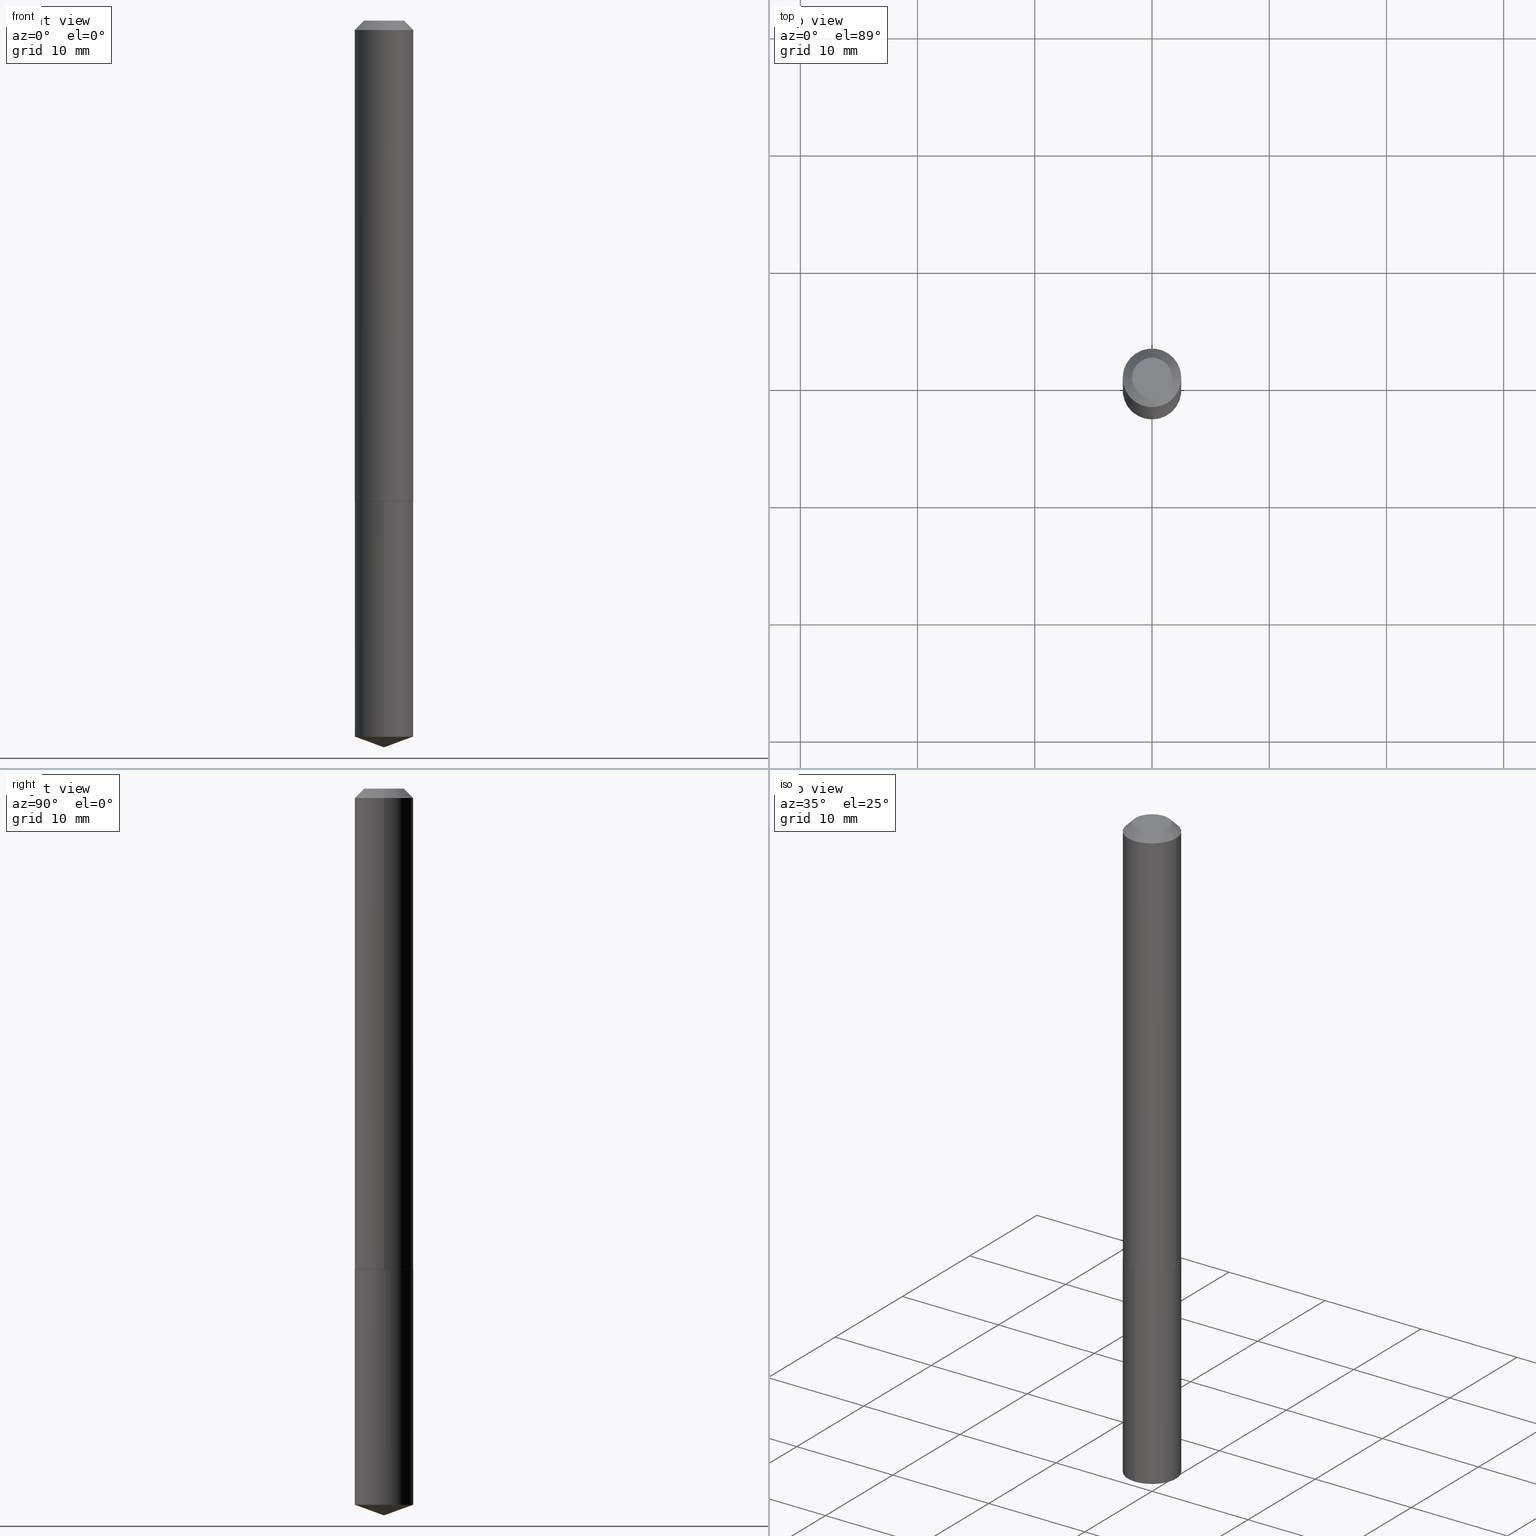
[diagram: canonical four-view strip — front | top / right | iso, engineering-drawing reading convention]
A machine part, canonical four-view strip (front | top / right | iso — engineering-drawing reading convention). The complete STEP part file that produces these views, byte-faithful:
ISO-10303-21;
HEADER;
FILE_DESCRIPTION (( 'STEP AP203' ),
    '1' );
FILE_NAME ('66017.STEP',
    '2024-04-23T12:02:58',
    ( '' ),
    ( '' ),
    'SwSTEP 2.0',
    'SolidWorks 2023',
    '' );
FILE_SCHEMA (( 'CONFIG_CONTROL_DESIGN' ));
ENDSEC;

DATA;
#1 = FACE_OUTER_BOUND ( 'NONE', #251, .T. ) ;
#2 = CARTESIAN_POINT ( 'NONE',  ( 0.09845000000000020401, -6.321676112109399581E-15, -1.613700000000000134 ) ) ;
#3 = DIRECTION ( 'NONE',  ( -6.982962677686265922E-15, -1.000000000000000000, 2.774858297271979165E-15 ) ) ;
#4 = DIRECTION ( 'NONE',  ( -2.445468806185136597E-29, 3.491481338843145583E-15, 1.000000000000000000 ) ) ;
#5 = CC_DESIGN_APPROVAL ( #203, ( #271 ) ) ;
#6 = ORIENTED_EDGE ( 'NONE', *, *, #126, .F. ) ;
#7 = ADVANCED_FACE ( 'NONE', ( #200 ), #317, .T. ) ;
#8 = EDGE_LOOP ( 'NONE', ( #17, #80 ) ) ;
#9 = CC_DESIGN_APPROVAL ( #154, ( #29 ) ) ;
#10 = ORIENTED_EDGE ( 'NONE', *, *, #339, .T. ) ;
#11 = CONICAL_SURFACE ( 'NONE', #252, 0.09845000000000020401, 0.7853981633973630139 ) ;
#12 = EDGE_LOOP ( 'NONE', ( #39, #261, #6, #13 ) ) ;
#13 = ORIENTED_EDGE ( 'NONE', *, *, #177, .F. ) ;
#14 = PERSON_AND_ORGANIZATION ( #312, #104 ) ;
#15 = DATE_AND_TIME ( #286, #325 ) ;
#16 = EDGE_CURVE ( 'NONE', #275, #147, #307, .T. ) ;
#17 = ORIENTED_EDGE ( 'NONE', *, *, #74, .T. ) ;
#18 = DIRECTION ( 'NONE',  ( -2.446042122429912463E-29, 3.490660317349492585E-15, 1.000000000000000000 ) ) ;
#19 = PERSON_AND_ORGANIZATION ( #312, #104 ) ;
#20 = VERTEX_POINT ( 'NONE', #326 ) ;
#21 = VECTOR ( 'NONE', #322, 39.37007874015748143 ) ;
#22 = DIRECTION ( 'NONE',  ( 0.7071067811865452413, -7.319954787623248157E-15, -0.7071067811865497932 ) ) ;
#23 = CARTESIAN_POINT ( 'NONE',  ( 0.000000000000000000, 0.000000000000000000, 0.000000000000000000 ) ) ;
#24 = COORDINATED_UNIVERSAL_TIME_OFFSET ( 5, 0, .BEHIND. ) ;
#25 = DIRECTION ( 'NONE',  ( -2.446042122429912463E-29, 3.490660317349492585E-15, 1.000000000000000000 ) ) ;
#26 = DIRECTION ( 'NONE',  ( -2.445468806185136597E-29, 3.491481338843145583E-15, 1.000000000000000000 ) ) ;
#27 = CARTESIAN_POINT ( 'NONE',  ( -9.033125219225071688E-28, 1.289058934876791926E-13, 36.92917874015748225 ) ) ;
#28 = CARTESIAN_POINT ( 'NONE',  ( -6.874726756181734128E-16, -0.09845000000000563023, -1.614199999999999635 ) ) ;
#29 = PRODUCT_DEFINITION_FORMATION_WITH_SPECIFIED_SOURCE ( 'ANY', '', #291, .NOT_KNOWN. ) ;
#30 = DIRECTION ( 'NONE',  ( -6.982962677686265922E-15, -1.000000000000000000, 2.774858297271979165E-15 ) ) ;
#31 = LINE ( 'NONE', #28, #279 ) ;
#32 = ADVANCED_FACE ( 'NONE', ( #329 ), #130, .F. ) ;
#33 = LINE ( 'NONE', #40, #118 ) ;
#34 = ORIENTED_EDGE ( 'NONE', *, *, #324, .T. ) ;
#35 = DIRECTION ( 'NONE',  ( -2.438088387897960049E-29, 3.491481338843145188E-15, 1.000000000000000000 ) ) ;
#36 = VERTEX_POINT ( 'NONE', #2 ) ;
#37 = CARTESIAN_POINT ( 'NONE',  ( -0.06719999999999999585, 5.238094878599405854E-16, 1.206277097156670637E-18 ) ) ;
#38 = CC_DESIGN_PERSON_AND_ORGANIZATION_ASSIGNMENT ( #14, #284, ( #79 ) ) ;
#39 = ORIENTED_EDGE ( 'NONE', *, *, #238, .T. ) ;
#40 = CARTESIAN_POINT ( 'NONE',  ( 5.970560446796191741E-29, -8.520352768618377167E-15, -2.440900000000000070 ) ) ;
#41 =( CONVERSION_BASED_UNIT ( 'INCH', #346 ) LENGTH_UNIT ( ) NAMED_UNIT ( #288 ) );
#42 = APPLICATION_CONTEXT ( 'configuration controlled 3d designs of mechanical parts and assemblies' ) ;
#43 = ORIENTED_EDGE ( 'NONE', *, *, #168, .T. ) ;
#44 = DIRECTION ( 'NONE',  ( 1.000000000000000000, -6.982962677686269866E-15, 0.000000000000000000 ) ) ;
#45 = DIRECTION ( 'NONE',  ( 0.7071067811864871766, -2.468850131081624789E-15, 0.7071067811866078578 ) ) ;
#46 = APPROVAL ( #319, 'UNSPECIFIED' ) ;
#47 = ORIENTED_EDGE ( 'NONE', *, *, #16, .T. ) ;
#48 = PERSON_AND_ORGANIZATION ( #312, #104 ) ;
#49 = CIRCLE ( 'NONE', #103, 0.09795000000000038398 ) ;
#50 =( GEOMETRIC_REPRESENTATION_CONTEXT ( 3 ) GLOBAL_UNCERTAINTY_ASSIGNED_CONTEXT ( ( #149 ) ) GLOBAL_UNIT_ASSIGNED_CONTEXT ( ( #41, #172, #320 ) ) REPRESENTATION_CONTEXT ( 'NONE', 'WORKASPACE' ) );
#51 = ADVANCED_FACE ( 'NONE', ( #59 ), #169, .T. ) ;
#52 = APPROVAL_ROLE ( '' ) ;
#53 = COORDINATED_UNIVERSAL_TIME_OFFSET ( 5, 0, .BEHIND. ) ;
#54 = CARTESIAN_POINT ( 'NONE',  ( 3.946253012540955150E-29, -5.634203436491184654E-15, -1.613700000000000134 ) ) ;
#55 = FACE_OUTER_BOUND ( 'NONE', #356, .T. ) ;
#56 = APPLICATION_PROTOCOL_DEFINITION ( 'international standard', 'config_control_design', 1994, #42 ) ;
#57 = VECTOR ( 'NONE', #232, 39.37007874015748143 ) ;
#58 = DIRECTION ( 'NONE',  ( 2.438088387897960049E-29, -3.491481338843145188E-15, -1.000000000000000000 ) ) ;
#59 = FACE_OUTER_BOUND ( 'NONE', #182, .T. ) ;
#60 = CYLINDRICAL_SURFACE ( 'NONE', #66, 0.09844999999999999585 ) ;
#61 = MANIFOLD_SOLID_BREP ( 'Body-Move/Copy2[1]', #166 ) ;
#62 = CARTESIAN_POINT ( 'NONE',  ( 3.946253012540955150E-29, -5.634203436491184654E-15, -1.613700000000000134 ) ) ;
#63 = FACE_OUTER_BOUND ( 'NONE', #221, .T. ) ;
#64 = FACE_OUTER_BOUND ( 'NONE', #155, .T. ) ;
#65 = DIRECTION ( 'NONE',  ( 2.445468806185136597E-29, -3.491481338843145583E-15, -1.000000000000000000 ) ) ;
#66 = AXIS2_PLACEMENT_3D ( 'NONE', #300, #264, #206 ) ;
#67 = CARTESIAN_POINT ( 'NONE',  ( 3.947475746944047390E-29, -5.635949177160606158E-15, -1.614199999999999857 ) ) ;
#68 = SHAPE_DEFINITION_REPRESENTATION ( #234, #95 ) ;
#69 = CC_DESIGN_PERSON_AND_ORGANIZATION_ASSIGNMENT ( #231, #379, ( #271 ) ) ;
#70 = DIRECTION ( 'NONE',  ( -2.445468806185136597E-29, 3.491481338843145583E-15, 1.000000000000000000 ) ) ;
#71 = ORIENTED_EDGE ( 'NONE', *, *, #373, .T. ) ;
#72 = VECTOR ( 'NONE', #45, 39.37007874015748143 ) ;
#73 = MANIFOLD_SOLID_BREP ( 'Body-Move/Copy2[2]', #161 ) ;
#74 = EDGE_CURVE ( 'NONE', #371, #85, #100, .T. ) ;
#75 = LINE ( 'NONE', #197, #21 ) ;
#76 = ORIENTED_EDGE ( 'NONE', *, *, #113, .F. ) ;
#77 = ORIENTED_EDGE ( 'NONE', *, *, #107, .F. ) ;
#78 = CC_DESIGN_PERSON_AND_ORGANIZATION_ASSIGNMENT ( #48, #112, ( #29 ) ) ;
#79 = SECURITY_CLASSIFICATION ( '', '', #173 ) ;
#80 = ORIENTED_EDGE ( 'NONE', *, *, #141, .T. ) ;
#81 = DATE_AND_TIME ( #295, #189 ) ;
#82 = VERTEX_POINT ( 'NONE', #183 ) ;
#83 = DIRECTION ( 'NONE',  ( 1.000000000000000000, 0.000000000000000000, 0.000000000000000000 ) ) ;
#84 = EDGE_CURVE ( 'NONE', #229, #105, #174, .T. ) ;
#85 = VERTEX_POINT ( 'NONE', #248 ) ;
#86 = PERSON_AND_ORGANIZATION ( #312, #104 ) ;
#87 = AXIS2_PLACEMENT_3D ( 'NONE', #245, #273, #299 ) ;
#88 = AXIS2_PLACEMENT_3D ( 'NONE', #212, #387, #156 ) ;
#89 = ORIENTED_EDGE ( 'NONE', *, *, #113, .T. ) ;
#90 = DIRECTION ( 'NONE',  ( -2.445468806185136597E-29, 3.491481338843145583E-15, 1.000000000000000000 ) ) ;
#91 = CARTESIAN_POINT ( 'NONE',  ( -2.949913012720686933E-47, 4.211693974208519599E-33, 1.206277097160142896E-18 ) ) ;
#92 = DIRECTION ( 'NONE',  ( 1.000000000000000000, -6.982962677686271444E-15, 0.000000000000000000 ) ) ;
#93 = AXIS2_PLACEMENT_3D ( 'NONE', #54, #184, #236 ) ;
#94 = DIRECTION ( 'NONE',  ( -2.445468806185136597E-29, 3.491481338843145583E-15, 1.000000000000000000 ) ) ;
#95 = ADVANCED_BREP_SHAPE_REPRESENTATION ( '66017', ( #61, #73, #314 ), #50 ) ;
#96 = CARTESIAN_POINT ( 'NONE',  ( 3.947475746944047390E-29, -5.635949177160606158E-15, -1.614199999999999857 ) ) ;
#97 = DIRECTION ( 'NONE',  ( -2.446042122429912463E-29, 3.490660317349492979E-15, 1.000000000000000000 ) ) ;
#98 = CARTESIAN_POINT ( 'NONE',  ( 5.881970061236980802E-29, -8.396597685671335252E-15, -2.405067130436492562 ) ) ;
#99 = EDGE_CURVE ( 'NONE', #371, #348, #337, .T. ) ;
#100 = CIRCLE ( 'NONE', #250, 0.06719999999999999585 ) ;
#101 = VECTOR ( 'NONE', #301, 39.37007874015748854 ) ;
#102 = ORIENTED_EDGE ( 'NONE', *, *, #193, .F. ) ;
#103 = AXIS2_PLACEMENT_3D ( 'NONE', #124, #240, #364 ) ;
#104 = ORGANIZATION ( 'UNSPECIFIED', 'UNSPECIFIED', '' ) ;
#105 = VERTEX_POINT ( 'NONE', #388 ) ;
#106 = DIRECTION ( 'NONE',  ( -2.446042122429912463E-29, 3.490660317349492585E-15, 1.000000000000000000 ) ) ;
#107 = EDGE_CURVE ( 'NONE', #147, #275, #49, .T. ) ;
#108 = CARTESIAN_POINT ( 'NONE',  ( 3.947475746944047390E-29, -5.635949177160606158E-15, -1.614199999999999857 ) ) ;
#109 = ORIENTED_EDGE ( 'NONE', *, *, #99, .F. ) ;
#110 = DIRECTION ( 'NONE',  ( 0.000000000000000000, 0.000000000000000000, 1.000000000000000000 ) ) ;
#111 = AXIS2_PLACEMENT_3D ( 'NONE', #338, #35, #195 ) ;
#112 = PERSON_AND_ORGANIZATION_ROLE ( 'creator' ) ;
#113 = EDGE_CURVE ( 'NONE', #82, #116, #313, .T. ) ;
#114 = CARTESIAN_POINT ( 'NONE',  ( 7.642090019328604414E-31, -1.091087918388490513E-16, -0.03125000000000021511 ) ) ;
#115 = DATE_AND_TIME ( #259, #296 ) ;
#116 = VERTEX_POINT ( 'NONE', #215 ) ;
#117 = CIRCLE ( 'NONE', #334, 0.09845000000000000973 ) ;
#118 = VECTOR ( 'NONE', #196, 39.37007874015749564 ) ;
#119 = CARTESIAN_POINT ( 'NONE',  ( -0.09845000000000010687, 6.995293233558193923E-16, -4.842691596355960348E-30 ) ) ;
#120 = APPROVAL_ROLE ( '' ) ;
#121 = CC_DESIGN_DATE_AND_TIME_ASSIGNMENT ( #115, #227, ( #79 ) ) ;
#122 = LINE ( 'NONE', #366, #194 ) ;
#123 = DESIGN_CONTEXT ( 'detailed design', #42, 'design' ) ;
#124 = CARTESIAN_POINT ( 'NONE',  ( 3.947475746944047390E-29, -5.635949177160606158E-15, -1.614199999999999857 ) ) ;
#125 = LINE ( 'NONE', #292, #170 ) ;
#126 = EDGE_CURVE ( 'NONE', #20, #348, #293, .T. ) ;
#127 = CARTESIAN_POINT ( 'NONE',  ( -2.949913012720686933E-47, 4.211693974208519599E-33, 1.206277097160142896E-18 ) ) ;
#128 = CARTESIAN_POINT ( 'NONE',  ( -0.09845000000000020401, -4.934674113135364966E-15, -1.613700000000000134 ) ) ;
#129 = DIRECTION ( 'NONE',  ( -6.982962677686265922E-15, -1.000000000000000000, 2.774858297271979165E-15 ) ) ;
#130 = PLANE ( 'NONE',  #376 ) ;
#131 = DIRECTION ( 'NONE',  ( 1.000000000000000000, -6.982962677686266711E-15, 0.000000000000000000 ) ) ;
#132 = APPROVAL_PERSON_ORGANIZATION ( #352, #46, #52 ) ;
#133 = ORIENTED_EDGE ( 'NONE', *, *, #216, .F. ) ;
#134 = FACE_OUTER_BOUND ( 'NONE', #198, .T. ) ;
#135 = CC_DESIGN_DATE_AND_TIME_ASSIGNMENT ( #382, #316, ( #271 ) ) ;
#136 = EDGE_LOOP ( 'NONE', ( #133, #145, #258, #43 ) ) ;
#137 = CARTESIAN_POINT ( 'NONE',  ( 5.970544216639173318E-29, -8.520352768618377167E-15, -2.440900000000000070 ) ) ;
#138 = AXIS2_PLACEMENT_3D ( 'NONE', #365, #26, #131 ) ;
#139 = AXIS2_PLACEMENT_3D ( 'NONE', #108, #106, #129 ) ;
#140 = CARTESIAN_POINT ( 'NONE',  ( 7.642090019328604414E-31, -1.091087918388490513E-16, -0.03125000000000021511 ) ) ;
#141 = EDGE_CURVE ( 'NONE', #85, #371, #354, .T. ) ;
#142 = ORIENTED_EDGE ( 'NONE', *, *, #211, .F. ) ;
#143 = ORIENTED_EDGE ( 'NONE', *, *, #16, .F. ) ;
#144 = CONICAL_SURFACE ( 'NONE', #274, 108.1684023407337918, 1.221730476396032605 ) ;
#145 = ORIENTED_EDGE ( 'NONE', *, *, #74, .F. ) ;
#146 = COORDINATED_UNIVERSAL_TIME_OFFSET ( 5, 0, .BEHIND. ) ;
#147 = VERTEX_POINT ( 'NONE', #268 ) ;
#148 = APPROVAL_DATE_TIME ( #386, #203 ) ;
#149 = UNCERTAINTY_MEASURE_WITH_UNIT (LENGTH_MEASURE( 1.000000000000000082E-05 ), #41, 'distance_accuracy_value', 'NONE');
#150 = ORIENTED_EDGE ( 'NONE', *, *, #84, .T. ) ;
#151 = DIRECTION ( 'NONE',  ( -6.982962677686268288E-15, -1.000000000000000000, 3.475157955500709564E-15 ) ) ;
#152 = AXIS2_PLACEMENT_3D ( 'NONE', #98, #305, #30 ) ;
#153 = AXIS2_PLACEMENT_3D ( 'NONE', #67, #162, #3 ) ;
#154 = APPROVAL ( #179, 'UNSPECIFIED' ) ;
#155 = EDGE_LOOP ( 'NONE', ( #283, #71, #76 ) ) ;
#156 = DIRECTION ( 'NONE',  ( 1.000000000000000000, -6.982962677686267499E-15, 4.876176775795935793E-29 ) ) ;
#157 = DIRECTION ( 'NONE',  ( 2.446042122429911622E-29, -3.490660317349492979E-15, -1.000000000000000000 ) ) ;
#158 = DIRECTION ( 'NONE',  ( -6.982962677686265922E-15, -1.000000000000000000, 2.774858297271979165E-15 ) ) ;
#159 = EDGE_CURVE ( 'NONE', #116, #82, #278, .T. ) ;
#160 = DIRECTION ( 'NONE',  ( -2.445468806185136597E-29, 3.491481338843145583E-15, 1.000000000000000000 ) ) ;
#161 = CLOSED_SHELL ( 'NONE', ( #246, #228, #358, #370, #51, #280, #7, #297 ) ) ;
#162 = DIRECTION ( 'NONE',  ( -2.446042122429912463E-29, 3.490660317349492585E-15, 1.000000000000000000 ) ) ;
#163 = DIRECTION ( 'NONE',  ( 1.000000000000000000, -6.982962677686269866E-15, 0.000000000000000000 ) ) ;
#164 = LINE ( 'NONE', #277, #72 ) ;
#165 = PRODUCT_RELATED_PRODUCT_CATEGORY ( 'detail', '', ( #291 ) ) ;
#166 = CLOSED_SHELL ( 'NONE', ( #344, #311, #254, #225, #32 ) ) ;
#167 = ORIENTED_EDGE ( 'NONE', *, *, #216, .T. ) ;
#168 = EDGE_CURVE ( 'NONE', #348, #20, #117, .T. ) ;
#169 = CONICAL_SURFACE ( 'NONE', #219, 0.09845000000000020401, 0.7853981633973630139 ) ;
#170 = VECTOR ( 'NONE', #22, 39.37007874015748143 ) ;
#171 = ORIENTED_EDGE ( 'NONE', *, *, #302, .T. ) ;
#172 =( NAMED_UNIT ( * ) PLANE_ANGLE_UNIT ( ) SI_UNIT ( $, .RADIAN. ) );
#173 = SECURITY_CLASSIFICATION_LEVEL ( 'unclassified' ) ;
#174 = CIRCLE ( 'NONE', #247, 0.09844999999999999585 ) ;
#175 = COORDINATED_UNIVERSAL_TIME_OFFSET ( 5, 0, .BEHIND. ) ;
#176 = CARTESIAN_POINT ( 'NONE',  ( 0.000000000000000000, 0.000000000000000000, 0.000000000000000000 ) ) ;
#177 = EDGE_CURVE ( 'NONE', #36, #20, #75, .T. ) ;
#178 = CARTESIAN_POINT ( 'NONE',  ( 3.946253012540955150E-29, -5.634203436491184654E-15, -1.613700000000000134 ) ) ;
#179 = APPROVAL_STATUS ( 'not_yet_approved' ) ;
#180 = DIRECTION ( 'NONE',  ( 1.000000000000000000, -6.982962677686266711E-15, 4.876163892769828153E-29 ) ) ;
#181 = FACE_OUTER_BOUND ( 'NONE', #12, .T. ) ;
#182 = EDGE_LOOP ( 'NONE', ( #306, #47, #309, #142 ) ) ;
#183 = CARTESIAN_POINT ( 'NONE',  ( -6.874726756181539871E-16, -0.09845000000000836415, -2.405067130436492562 ) ) ;
#184 = DIRECTION ( 'NONE',  ( -2.445468806185136597E-29, 3.491481338843145583E-15, 1.000000000000000000 ) ) ;
#185 = DIRECTION ( 'NONE',  ( -2.445468806185136597E-29, 3.491481338843145583E-15, 1.000000000000000000 ) ) ;
#186 = CARTESIAN_POINT ( 'NONE',  ( 6.995293233558774722E-16, 0.09844999999999436147, -1.614200000000000301 ) ) ;
#187 = DIRECTION ( 'NONE',  ( -2.446042122429912463E-29, 3.490660317349492585E-15, 1.000000000000000000 ) ) ;
#188 = CARTESIAN_POINT ( 'NONE',  ( -0.09845000000000000973, 5.783638837793639525E-16, -0.03125000000000021511 ) ) ;
#189 = LOCAL_TIME ( 8, 2, 58.00000000000000000, #233 ) ;
#190 = DIRECTION ( 'NONE',  ( -1.000000000000000000, 6.982962677686266711E-15, 0.000000000000000000 ) ) ;
#191 = CARTESIAN_POINT ( 'NONE',  ( 3.947475746944047390E-29, -5.635949177160606158E-15, -1.614199999999999857 ) ) ;
#192 = APPROVAL_DATE_TIME ( #15, #46 ) ;
#193 = EDGE_CURVE ( 'NONE', #116, #229, #267, .T. ) ;
#194 = VECTOR ( 'NONE', #272, 39.37007874015748143 ) ;
#195 = DIRECTION ( 'NONE',  ( 1.000000000000000000, -6.982962677686265922E-15, 4.876176775795935793E-29 ) ) ;
#196 = DIRECTION ( 'NONE',  ( 6.676917655467970496E-15, 0.9396926207859102043, 0.3420201433256636059 ) ) ;
#197 = CARTESIAN_POINT ( 'NONE',  ( 0.09845000000000010687, -6.874726756182137434E-16, 4.800596035771104119E-30 ) ) ;
#198 = EDGE_LOOP ( 'NONE', ( #77, #143 ) ) ;
#199 = LOCAL_TIME ( 8, 2, 58.00000000000000000, #24 ) ;
#200 = FACE_OUTER_BOUND ( 'NONE', #136, .T. ) ;
#201 = APPROVAL_DATE_TIME ( #81, #154 ) ;
#202 = PERSON_AND_ORGANIZATION_ROLE ( 'design_owner' ) ;
#203 = APPROVAL ( #359, 'UNSPECIFIED' ) ;
#204 = PERSON_AND_ORGANIZATION ( #312, #104 ) ;
#205 = ORIENTED_EDGE ( 'NONE', *, *, #373, .F. ) ;
#206 = DIRECTION ( 'NONE',  ( -6.982962677686265922E-15, -1.000000000000000000, 2.774858297271979165E-15 ) ) ;
#207 = DIRECTION ( 'NONE',  ( -1.000000000000000000, 6.982962677686265922E-15, -4.876176775795935793E-29 ) ) ;
#208 = CC_DESIGN_SECURITY_CLASSIFICATION ( #79, ( #29 ) ) ;
#209 = FACE_OUTER_BOUND ( 'NONE', #342, .T. ) ;
#210 = CARTESIAN_POINT ( 'NONE',  ( -9.033125219225071688E-28, 1.289058934876791926E-13, 36.92917874015748225 ) ) ;
#211 = EDGE_CURVE ( 'NONE', #287, #36, #255, .T. ) ;
#212 = CARTESIAN_POINT ( 'NONE',  ( 0.000000000000000000, 0.000000000000000000, 0.000000000000000000 ) ) ;
#213 = CYLINDRICAL_SURFACE ( 'NONE', #153, 0.09844999999999999585 ) ;
#214 = VECTOR ( 'NONE', #266, 39.37007874015748143 ) ;
#215 = CARTESIAN_POINT ( 'NONE',  ( 6.995293233558771764E-16, 0.09844999999999157203, -2.405067130436493006 ) ) ;
#216 = EDGE_CURVE ( 'NONE', #85, #20, #125, .T. ) ;
#217 = EDGE_LOOP ( 'NONE', ( #102, #257, #10, #340 ) ) ;
#218 =( LENGTH_UNIT ( ) NAMED_UNIT ( * ) SI_UNIT ( $, .METRE. ) );
#219 = AXIS2_PLACEMENT_3D ( 'NONE', #62, #4, #163 ) ;
#220 = ORIENTED_EDGE ( 'NONE', *, *, #168, .F. ) ;
#221 = EDGE_LOOP ( 'NONE', ( #205, #34, #315 ) ) ;
#222 = AXIS2_PLACEMENT_3D ( 'NONE', #96, #185, #92 ) ;
#223 = VECTOR ( 'NONE', #97, 39.37007874015748143 ) ;
#224 = MECHANICAL_CONTEXT ( 'NONE', #378, 'mechanical' ) ;
#225 = ADVANCED_FACE ( 'NONE', ( #235 ), #60, .T. ) ;
#226 = PERSON_AND_ORGANIZATION ( #312, #104 ) ;
#227 = DATE_TIME_ROLE ( 'classification_date' ) ;
#228 = ADVANCED_FACE ( 'NONE', ( #181 ), #241, .T. ) ;
#229 = VERTEX_POINT ( 'NONE', #186 ) ;
#230 = AXIS2_PLACEMENT_3D ( 'NONE', #91, #160, #180 ) ;
#231 = PERSON_AND_ORGANIZATION ( #312, #104 ) ;
#232 = DIRECTION ( 'NONE',  ( -2.445468806185136877E-29, 3.491481338843145188E-15, 1.000000000000000000 ) ) ;
#233 = COORDINATED_UNIVERSAL_TIME_OFFSET ( 5, 0, .BEHIND. ) ;
#234 = PRODUCT_DEFINITION_SHAPE ( 'NONE', 'NONE',  #271 ) ;
#235 = FACE_OUTER_BOUND ( 'NONE', #217, .T. ) ;
#236 = DIRECTION ( 'NONE',  ( 1.000000000000000000, -6.982962677686269866E-15, 0.000000000000000000 ) ) ;
#237 = DIRECTION ( 'NONE',  ( -6.982962677686268288E-15, -1.000000000000000000, 3.475157955500709564E-15 ) ) ;
#238 = EDGE_CURVE ( 'NONE', #36, #287, #308, .T. ) ;
#239 = CONICAL_SURFACE ( 'NONE', #341, 108.1684023407337918, 1.221730476396032605 ) ;
#240 = DIRECTION ( 'NONE',  ( -2.445468806185136597E-29, 3.491481338843145583E-15, 1.000000000000000000 ) ) ;
#241 = CYLINDRICAL_SURFACE ( 'NONE', #88, 0.09845000000000010687 ) ;
#242 = CYLINDRICAL_SURFACE ( 'NONE', #304, 0.09845000000000010687 ) ;
#243 = DIRECTION ( 'NONE',  ( -2.445468806185136597E-29, 3.491481338843145583E-15, 1.000000000000000000 ) ) ;
#244 = DIRECTION ( 'NONE',  ( 1.000000000000000000, -6.982962677686267499E-15, 4.876176775795935793E-29 ) ) ;
#245 = CARTESIAN_POINT ( 'NONE',  ( 5.881970061236980802E-29, -8.396597685671335252E-15, -2.405067130436492562 ) ) ;
#246 = ADVANCED_FACE ( 'NONE', ( #209 ), #362, .T. ) ;
#247 = AXIS2_PLACEMENT_3D ( 'NONE', #191, #25, #158 ) ;
#248 = CARTESIAN_POINT ( 'NONE',  ( 0.06719999999999999585, -6.227751425848516752E-16, 1.206277097163960667E-18 ) ) ;
#249 = AXIS2_PLACEMENT_3D ( 'NONE', #333, #58, #207 ) ;
#250 = AXIS2_PLACEMENT_3D ( 'NONE', #127, #243, #367 ) ;
#251 = EDGE_LOOP ( 'NONE', ( #89, #253, #383, #345 ) ) ;
#252 = AXIS2_PLACEMENT_3D ( 'NONE', #178, #294, #44 ) ;
#253 = ORIENTED_EDGE ( 'NONE', *, *, #193, .T. ) ;
#254 = ADVANCED_FACE ( 'NONE', ( #63 ), #239, .T. ) ;
#255 = CIRCLE ( 'NONE', #93, 0.09845000000000020401 ) ;
#256 = APPROVAL_ROLE ( '' ) ;
#257 = ORIENTED_EDGE ( 'NONE', *, *, #159, .T. ) ;
#258 = ORIENTED_EDGE ( 'NONE', *, *, #99, .T. ) ;
#259 = CALENDAR_DATE ( 2024, 23, 4 ) ;
#260 = EDGE_CURVE ( 'NONE', #287, #348, #262, .T. ) ;
#261 = ORIENTED_EDGE ( 'NONE', *, *, #260, .T. ) ;
#262 = LINE ( 'NONE', #119, #57 ) ;
#263 = CALENDAR_DATE ( 2024, 23, 4 ) ;
#264 = DIRECTION ( 'NONE',  ( -2.446042122429912463E-29, 3.490660317349492585E-15, 1.000000000000000000 ) ) ;
#265 = CC_DESIGN_PERSON_AND_ORGANIZATION_ASSIGNMENT ( #226, #350, ( #29 ) ) ;
#266 = DIRECTION ( 'NONE',  ( -0.7071067811865452413, 2.468850131082233000E-15, -0.7071067811865497932 ) ) ;
#267 = LINE ( 'NONE', #269, #223 ) ;
#268 = CARTESIAN_POINT ( 'NONE',  ( 0.09795000000000038398, -6.319930371439978866E-15, -1.614199999999999857 ) ) ;
#269 = CARTESIAN_POINT ( 'NONE',  ( 6.995293233558578493E-16, 0.09844999999999436147, -1.614200000000000301 ) ) ;
#270 = DIRECTION ( 'NONE',  ( -2.446042122429912463E-29, 3.490660317349492979E-15, 1.000000000000000000 ) ) ;
#271 = PRODUCT_DEFINITION ( 'UNKNOWN', '', #29, #123 ) ;
#272 = DIRECTION ( 'NONE',  ( -0.7071067811864871766, 7.493145998870136435E-15, 0.7071067811866078578 ) ) ;
#273 = DIRECTION ( 'NONE',  ( -2.446042122429912463E-29, 3.490660317349492585E-15, 1.000000000000000000 ) ) ;
#274 = AXIS2_PLACEMENT_3D ( 'NONE', #210, #187, #237 ) ;
#275 = VERTEX_POINT ( 'NONE', #357 ) ;
#276 = ORIENTED_EDGE ( 'NONE', *, *, #177, .T. ) ;
#277 = CARTESIAN_POINT ( 'NONE',  ( 0.09845000000000020401, -6.321676112109399581E-15, -1.613700000000000134 ) ) ;
#278 = CIRCLE ( 'NONE', #152, 0.09844999999999999585 ) ;
#279 = VECTOR ( 'NONE', #270, 39.37007874015748143 ) ;
#280 = ADVANCED_FACE ( 'NONE', ( #335 ), #242, .T. ) ;
#281 = DIRECTION ( 'NONE',  ( -1.000000000000000000, 6.982962677686266711E-15, 0.000000000000000000 ) ) ;
#282 = APPLICATION_PROTOCOL_DEFINITION ( 'international standard', 'config_control_design', 1994, #378 ) ;
#283 = ORIENTED_EDGE ( 'NONE', *, *, #324, .F. ) ;
#284 = PERSON_AND_ORGANIZATION_ROLE ( 'classification_officer' ) ;
#285 = ORIENTED_EDGE ( 'NONE', *, *, #384, .F. ) ;
#286 = CALENDAR_DATE ( 2024, 23, 4 ) ;
#287 = VERTEX_POINT ( 'NONE', #128 ) ;
#288 = DIMENSIONAL_EXPONENTS ( 1.000000000000000000, 0.000000000000000000, 0.000000000000000000, 0.000000000000000000, 0.000000000000000000, 0.000000000000000000, 0.000000000000000000 ) ;
#289 = CALENDAR_DATE ( 2024, 23, 4 ) ;
#290 = EDGE_LOOP ( 'NONE', ( #381, #150 ) ) ;
#291 = PRODUCT ( '66017', '66017', '', ( #224 ) ) ;
#292 = CARTESIAN_POINT ( 'NONE',  ( 0.09845000000000000973, -7.845248197194565048E-16, -0.03125000000000021511 ) ) ;
#293 = CIRCLE ( 'NONE', #138, 0.09845000000000000973 ) ;
#294 = DIRECTION ( 'NONE',  ( -2.445468806185136597E-29, 3.491481338843145583E-15, 1.000000000000000000 ) ) ;
#295 = CALENDAR_DATE ( 2024, 23, 4 ) ;
#296 = LOCAL_TIME ( 8, 2, 58.00000000000000000, #146 ) ;
#297 = ADVANCED_FACE ( 'NONE', ( #331 ), #368, .F. ) ;
#298 = CARTESIAN_POINT ( 'NONE',  ( 3.947475746944047390E-29, -5.635949177160606158E-15, -1.614199999999999857 ) ) ;
#299 = DIRECTION ( 'NONE',  ( -6.982962677686265922E-15, -1.000000000000000000, 2.774858297271979165E-15 ) ) ;
#300 = CARTESIAN_POINT ( 'NONE',  ( 3.947475746944047390E-29, -5.635949177160606158E-15, -1.614199999999999857 ) ) ;
#301 = DIRECTION ( 'NONE',  ( -6.561838499445205585E-15, -0.9396926207859077618, 0.3420201433256702117 ) ) ;
#302 = EDGE_CURVE ( 'NONE', #275, #287, #122, .T. ) ;
#303 = AXIS2_PLACEMENT_3D ( 'NONE', #114, #351, #281 ) ;
#304 = AXIS2_PLACEMENT_3D ( 'NONE', #23, #94, #244 ) ;
#305 = DIRECTION ( 'NONE',  ( -2.446042122429912463E-29, 3.490660317349492585E-15, 1.000000000000000000 ) ) ;
#306 = ORIENTED_EDGE ( 'NONE', *, *, #302, .F. ) ;
#307 = CIRCLE ( 'NONE', #222, 0.09795000000000038398 ) ;
#308 = CIRCLE ( 'NONE', #347, 0.09845000000000020401 ) ;
#309 = ORIENTED_EDGE ( 'NONE', *, *, #384, .T. ) ;
#310 = ORIENTED_EDGE ( 'NONE', *, *, #141, .F. ) ;
#311 = ADVANCED_FACE ( 'NONE', ( #64 ), #144, .T. ) ;
#312 = PERSON ( 'UNSPECIFIED', 'UNSPECIFIED', 'UNSPECIFIED', ('UNSPECIFIED'), ('UNSPECIFIED'), ('UNSPECIFIED') ) ;
#313 = CIRCLE ( 'NONE', #87, 0.09844999999999999585 ) ;
#314 = AXIS2_PLACEMENT_3D ( 'NONE', #176, #110, #83 ) ;
#315 = ORIENTED_EDGE ( 'NONE', *, *, #159, .F. ) ;
#316 = DATE_TIME_ROLE ( 'creation_date' ) ;
#317 = CONICAL_SURFACE ( 'NONE', #303, 0.09845000000000000973, 0.7853981633974450594 ) ;
#318 = LOCAL_TIME ( 8, 2, 58.00000000000000000, #53 ) ;
#319 = APPROVAL_STATUS ( 'not_yet_approved' ) ;
#320 =( NAMED_UNIT ( * ) SI_UNIT ( $, .STERADIAN. ) SOLID_ANGLE_UNIT ( ) );
#321 = EDGE_LOOP ( 'NONE', ( #360, #349, #276, #220 ) ) ;
#322 = DIRECTION ( 'NONE',  ( -2.445468806185136877E-29, 3.491481338843145188E-15, 1.000000000000000000 ) ) ;
#323 = CARTESIAN_POINT ( 'NONE',  ( -0.09845000000000000973, -2.172126790809196006E-15, -0.03125000000000021511 ) ) ;
#324 = EDGE_CURVE ( 'NONE', #375, #82, #361, .T. ) ;
#325 = LOCAL_TIME ( 8, 2, 58.00000000000000000, #175 ) ;
#326 = CARTESIAN_POINT ( 'NONE',  ( 0.09845000000000000973, -7.965814674570621538E-16, -0.03125000000000021511 ) ) ;
#327 = CARTESIAN_POINT ( 'NONE',  ( 7.642090019328604414E-31, -1.091087918388490513E-16, -0.03125000000000021511 ) ) ;
#328 = CARTESIAN_POINT ( 'NONE',  ( 5.968693322474538198E-29, -8.523003354408487674E-15, -2.440900000000000070 ) ) ;
#329 = FACE_OUTER_BOUND ( 'NONE', #290, .T. ) ;
#330 = CARTESIAN_POINT ( 'NONE',  ( 3.946253012540955150E-29, -5.634203436491184654E-15, -1.613700000000000134 ) ) ;
#331 = FACE_OUTER_BOUND ( 'NONE', #8, .T. ) ;
#332 = DIRECTION ( 'NONE',  ( 1.000000000000000000, -6.982962677686269866E-15, 0.000000000000000000 ) ) ;
#333 = CARTESIAN_POINT ( 'NONE',  ( -1.474956506360343467E-47, 2.105846987104259800E-33, 6.031385485800714479E-19 ) ) ;
#334 = AXIS2_PLACEMENT_3D ( 'NONE', #140, #70, #353 ) ;
#335 = FACE_OUTER_BOUND ( 'NONE', #321, .T. ) ;
#336 = AXIS2_PLACEMENT_3D ( 'NONE', #327, #65, #190 ) ;
#337 = LINE ( 'NONE', #188, #214 ) ;
#338 = CARTESIAN_POINT ( 'NONE',  ( 3.947475746944047390E-29, -5.635949177160606158E-15, -1.614199999999999857 ) ) ;
#339 = EDGE_CURVE ( 'NONE', #82, #105, #31, .T. ) ;
#340 = ORIENTED_EDGE ( 'NONE', *, *, #84, .F. ) ;
#341 = AXIS2_PLACEMENT_3D ( 'NONE', #27, #18, #151 ) ;
#342 = EDGE_LOOP ( 'NONE', ( #310, #167, #374, #109 ) ) ;
#343 = PLANE ( 'NONE',  #111 ) ;
#344 = ADVANCED_FACE ( 'NONE', ( #1 ), #213, .T. ) ;
#345 = ORIENTED_EDGE ( 'NONE', *, *, #339, .F. ) ;
#346 = LENGTH_MEASURE_WITH_UNIT ( LENGTH_MEASURE( 0.02539999999999999897 ), #218 );
#347 = AXIS2_PLACEMENT_3D ( 'NONE', #330, #90, #332 ) ;
#348 = VERTEX_POINT ( 'NONE', #323 ) ;
#349 = ORIENTED_EDGE ( 'NONE', *, *, #211, .T. ) ;
#350 = PERSON_AND_ORGANIZATION_ROLE ( 'design_supplier' ) ;
#351 = DIRECTION ( 'NONE',  ( 2.445468806185136597E-29, -3.491481338843145583E-15, -1.000000000000000000 ) ) ;
#352 = PERSON_AND_ORGANIZATION ( #312, #104 ) ;
#353 = DIRECTION ( 'NONE',  ( 1.000000000000000000, -6.982962677686266711E-15, 0.000000000000000000 ) ) ;
#354 = CIRCLE ( 'NONE', #230, 0.06719999999999999585 ) ;
#355 = APPROVAL_PERSON_ORGANIZATION ( #19, #154, #120 ) ;
#356 = EDGE_LOOP ( 'NONE', ( #380, #171, #372, #285 ) ) ;
#357 = CARTESIAN_POINT ( 'NONE',  ( -0.09795000000000038398, -4.937323340309474589E-15, -1.614199999999999857 ) ) ;
#358 = ADVANCED_FACE ( 'NONE', ( #55 ), #11, .T. ) ;
#359 = APPROVAL_STATUS ( 'not_yet_approved' ) ;
#360 = ORIENTED_EDGE ( 'NONE', *, *, #260, .F. ) ;
#361 = LINE ( 'NONE', #328, #101 ) ;
#362 = CONICAL_SURFACE ( 'NONE', #336, 0.09845000000000000973, 0.7853981633974450594 ) ;
#363 = CC_DESIGN_PERSON_AND_ORGANIZATION_ASSIGNMENT ( #204, #202, ( #291 ) ) ;
#364 = DIRECTION ( 'NONE',  ( 1.000000000000000000, -6.982962677686271444E-15, 0.000000000000000000 ) ) ;
#365 = CARTESIAN_POINT ( 'NONE',  ( 7.642090019328604414E-31, -1.091087918388490513E-16, -0.03125000000000021511 ) ) ;
#366 = CARTESIAN_POINT ( 'NONE',  ( -0.09845000000000020401, -4.934674113135364966E-15, -1.613700000000000134 ) ) ;
#367 = DIRECTION ( 'NONE',  ( 1.000000000000000000, -6.982962677686266711E-15, 4.876163892769828153E-29 ) ) ;
#368 = PLANE ( 'NONE',  #249 ) ;
#369 = APPROVAL_PERSON_ORGANIZATION ( #86, #203, #256 ) ;
#370 = ADVANCED_FACE ( 'NONE', ( #134 ), #343, .F. ) ;
#371 = VERTEX_POINT ( 'NONE', #37 ) ;
#372 = ORIENTED_EDGE ( 'NONE', *, *, #238, .F. ) ;
#373 = EDGE_CURVE ( 'NONE', #375, #116, #33, .T. ) ;
#374 = ORIENTED_EDGE ( 'NONE', *, *, #126, .T. ) ;
#375 = VERTEX_POINT ( 'NONE', #137 ) ;
#376 = AXIS2_PLACEMENT_3D ( 'NONE', #298, #157, #390 ) ;
#377 = CC_DESIGN_APPROVAL ( #46, ( #79 ) ) ;
#378 = APPLICATION_CONTEXT ( 'configuration controlled 3d designs of mechanical parts and assemblies' ) ;
#379 = PERSON_AND_ORGANIZATION_ROLE ( 'creator' ) ;
#380 = ORIENTED_EDGE ( 'NONE', *, *, #107, .T. ) ;
#381 = ORIENTED_EDGE ( 'NONE', *, *, #389, .T. ) ;
#382 = DATE_AND_TIME ( #263, #199 ) ;
#383 = ORIENTED_EDGE ( 'NONE', *, *, #389, .F. ) ;
#384 = EDGE_CURVE ( 'NONE', #147, #36, #164, .T. ) ;
#385 = CIRCLE ( 'NONE', #139, 0.09844999999999999585 ) ;
#386 = DATE_AND_TIME ( #289, #318 ) ;
#387 = DIRECTION ( 'NONE',  ( -2.445468806185136597E-29, 3.491481338843145583E-15, 1.000000000000000000 ) ) ;
#388 = CARTESIAN_POINT ( 'NONE',  ( -6.874726756181734128E-16, -0.09845000000000563023, -1.614199999999999635 ) ) ;
#389 = EDGE_CURVE ( 'NONE', #105, #229, #385, .T. ) ;
#390 = DIRECTION ( 'NONE',  ( 6.982962677686265922E-15, 1.000000000000000000, -3.490660317349492979E-15 ) ) ;
ENDSEC;
END-ISO-10303-21;
